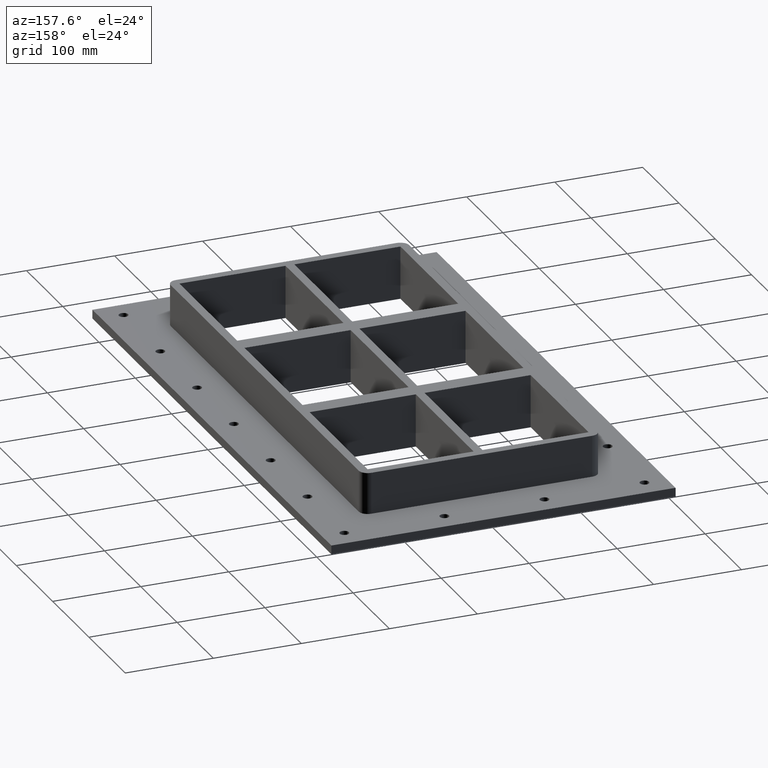
[diagram: clean part render]
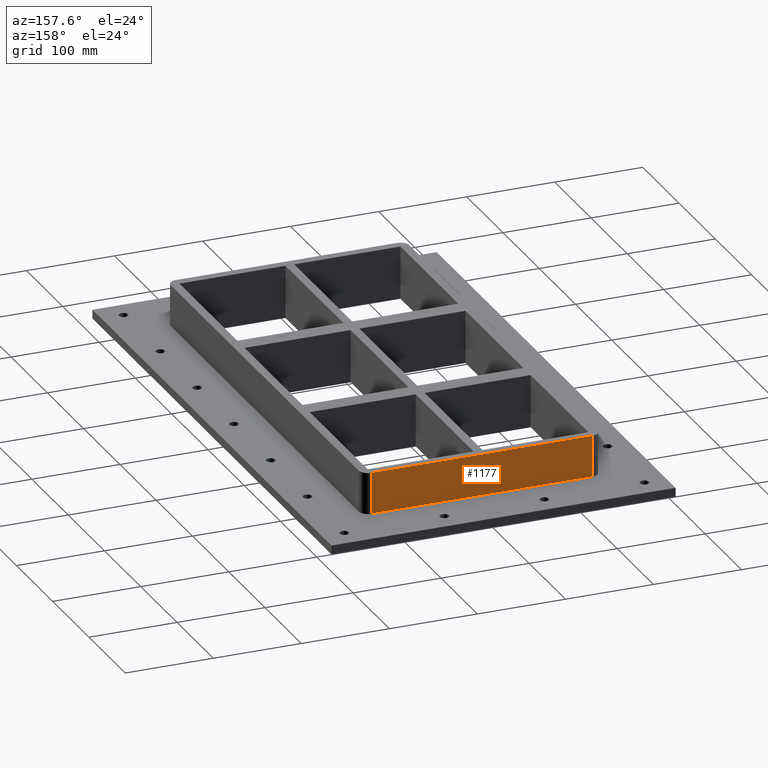
[diagram: same view with one face highlighted and labeled with its STEP entity id]
A machine part, auxiliary view. The second image highlights one B-rep face of the part: STEP entity #1177.
In plain terms, the highlighted planar face has unit normal (0, 1, 0).
Its self-contained STEP definition (entity closure, byte-faithful):
#763=CARTESIAN_POINT('',(125.49999999999994,269.25000000000006,-17.0));
#764=VERTEX_POINT('',#763);
#814=CARTESIAN_POINT('',(-125.50000000000004,269.25,-17.0));
#815=VERTEX_POINT('',#814);
#823=CARTESIAN_POINT('',(125.49999999999994,269.25000000000006,-17.0));
#824=DIRECTION('',(-1.0,0.0,0.0));
#825=VECTOR('',#824,251.0);
#826=LINE('',#823,#825);
#827=EDGE_CURVE('',#764,#815,#826,.T.);
#1111=CARTESIAN_POINT('',(125.49999999999994,269.25000000000006,30.0));
#1112=VERTEX_POINT('',#1111);
#1113=CARTESIAN_POINT('',(125.49999999999994,269.25000000000006,-17.0));
#1114=DIRECTION('',(0.0,0.0,1.0));
#1115=VECTOR('',#1114,47.0);
#1116=LINE('',#1113,#1115);
#1117=EDGE_CURVE('',#764,#1112,#1116,.T.);
#1154=CARTESIAN_POINT('',(135.49999999999994,269.25000000000006,0.0));
#1155=DIRECTION('',(0.0,1.0,0.0));
#1156=DIRECTION('',(-1.0,0.0,0.0));
#1157=AXIS2_PLACEMENT_3D('',#1154,#1155,#1156);
#1158=PLANE('',#1157);
#1159=ORIENTED_EDGE('',*,*,#827,.T.);
#1160=CARTESIAN_POINT('',(-125.50000000000009,269.25000000000006,30.0));
#1161=VERTEX_POINT('',#1160);
#1162=CARTESIAN_POINT('',(-125.50000000000009,269.25000000000006,30.0));
#1163=DIRECTION('',(0.0,0.0,-1.0));
#1164=VECTOR('',#1163,47.0);
#1165=LINE('',#1162,#1164);
#1166=EDGE_CURVE('',#1161,#815,#1165,.T.);
#1167=ORIENTED_EDGE('',*,*,#1166,.F.);
#1168=CARTESIAN_POINT('',(125.49999999999994,269.25000000000006,30.0));
#1169=DIRECTION('',(-1.0,0.0,0.0));
#1170=VECTOR('',#1169,251.0);
#1171=LINE('',#1168,#1170);
#1172=EDGE_CURVE('',#1112,#1161,#1171,.T.);
#1173=ORIENTED_EDGE('',*,*,#1172,.F.);
#1174=ORIENTED_EDGE('',*,*,#1117,.F.);
#1175=EDGE_LOOP('',(#1159,#1167,#1173,#1174));
#1176=FACE_OUTER_BOUND('',#1175,.T.);
#1177=ADVANCED_FACE('',(#1176),#1158,.T.);